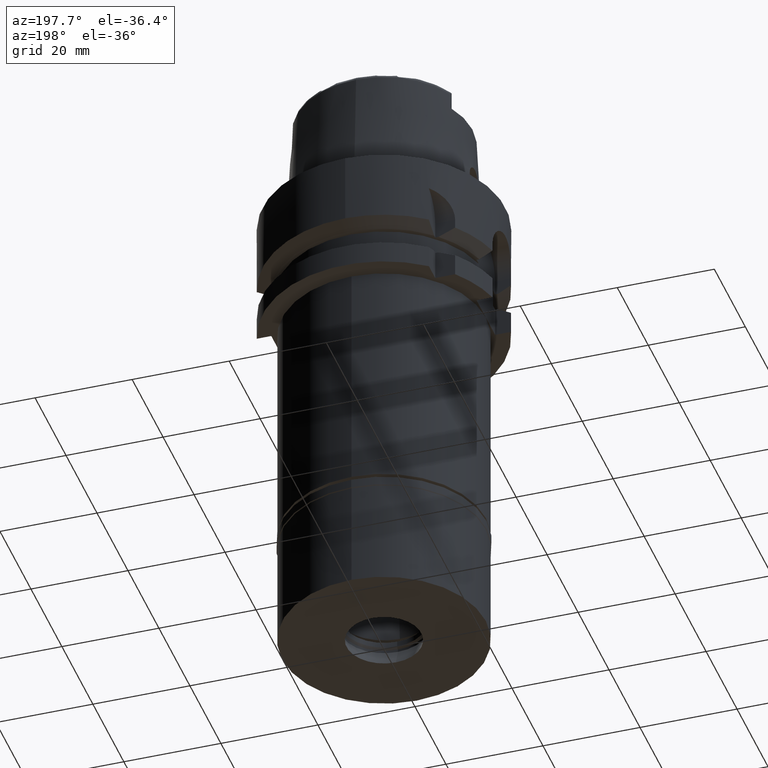
[diagram: clean part render]
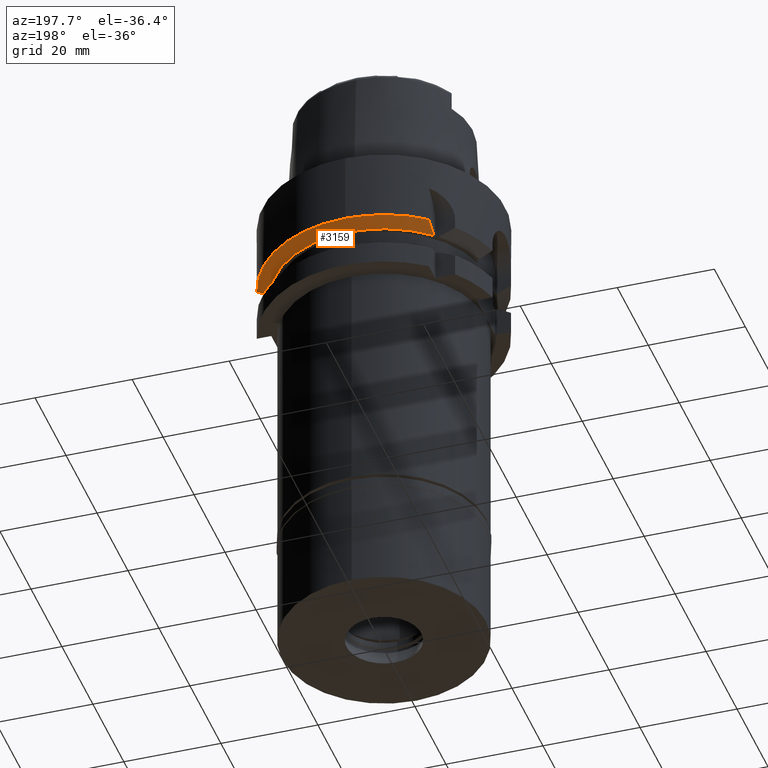
[diagram: same view with one face highlighted and labeled with its STEP entity id]
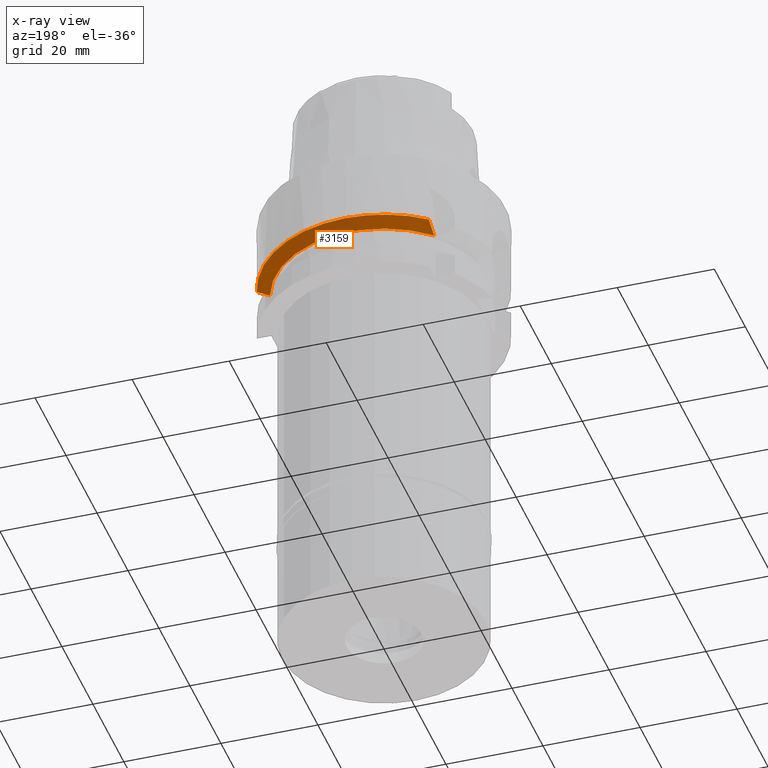
[diagram: x-ray of the same camera — body ghosted, the highlighted face saturated]
A machine part, auxiliary view. The second image highlights one B-rep face of the part: STEP entity #3159.
The next image is the same camera in x-ray: the body ghosted, the highlighted face saturated — about 0% of this face is hidden behind the body in this view.
In plain terms, the highlighted conical surface has half-angle 60 deg.
Its self-contained STEP definition (entity closure, byte-faithful):
#96 = VERTEX_POINT ( 'NONE', #3486 ) ;
#105 = EDGE_CURVE ( 'NONE', #1475, #3084, #764, .T. ) ;
#146 = CARTESIAN_POINT ( 'NONE',  ( 0.0000000000000000000, 25.00000000000000000, -14.62250092523999889 ) ) ;
#301 = DIRECTION ( 'NONE',  ( 0.9599999999999999645, 0.2800000000000000266, 0.0000000000000000000 ) ) ;
#417 = ORIENTED_EDGE ( 'NONE', *, *, #858, .F. ) ;
#457 = DIRECTION ( 'NONE',  ( 0.0000000000000000000, 0.0000000000000000000, 1.000000000000000000 ) ) ;
#550 = CARTESIAN_POINT ( 'NONE',  ( -15.50001397181000051, 19.61503420524999797, -14.62244977309000049 ) ) ;
#714 = DIRECTION ( 'NONE',  ( 0.0000000000000000000, 0.0000000000000000000, 1.000000000000000000 ) ) ;
#764 = CIRCLE ( 'NONE', #5355, 22.39759526418999869 ) ;
#788 = DIRECTION ( 'NONE',  ( 0.0000000000000000000, 0.0000000000000000000, 1.000000000000000000 ) ) ;
#858 = EDGE_CURVE ( 'NONE', #1855, #1966, #4204, .T. ) ;
#913 = ORIENTED_EDGE ( 'NONE', *, *, #2968, .F. ) ;
#967 = CARTESIAN_POINT ( 'NONE',  ( 21.27562137216000338, 7.000000355117999007, -16.12500000000000000 ) ) ;
#1079 = CARTESIAN_POINT ( 'NONE',  ( 0.0000000000000000000, 0.0000000000000000000, -14.62250092523999889 ) ) ;
#1127 = AXIS2_PLACEMENT_3D ( 'NONE', #3671, #788, #1978 ) ;
#1289 = FACE_OUTER_BOUND ( 'NONE', #2756, .T. ) ;
#1342 = ORIENTED_EDGE ( 'NONE', *, *, #105, .T. ) ;
#1475 = VERTEX_POINT ( 'NONE', #2160 ) ;
#1749 = CARTESIAN_POINT ( 'NONE',  ( -15.49997362910369603, 17.26571859756561267, -15.66749143312159021 ) ) ;
#1855 = VERTEX_POINT ( 'NONE', #146 ) ;
#1966 = VERTEX_POINT ( 'NONE', #3008 ) ;
#1978 = DIRECTION ( 'NONE',  ( 0.0000000000000000000, 1.000000000000000000, 0.0000000000000000000 ) ) ;
#2160 = CARTESIAN_POINT ( 'NONE',  ( 21.27562137216000338, 7.000000355117999007, -16.12500000000000000 ) ) ;
#2380 = CARTESIAN_POINT ( 'NONE',  ( 23.07028372070000088, 6.999999540189000058, -15.13727886184999960 ) ) ;
#2452 = CARTESIAN_POINT ( 'NONE',  ( 0.0000000000000000000, 0.0000000000000000000, -15.37375046262000033 ) ) ;
#2483 = CONICAL_SURFACE ( 'NONE', #3659, 23.69879763209999979, 1.047197551196400456 ) ;
#2634 = CARTESIAN_POINT ( 'NONE',  ( 21.56909304003000116, 7.000000355117999007, -15.96405165830999984 ) ) ;
#2756 = EDGE_LOOP ( 'NONE', ( #417, #3940, #913, #1342, #3224 ) ) ;
#2833 = EDGE_CURVE ( 'NONE', #3084, #1966, #4133, .T. ) ;
#2944 = DIRECTION ( 'NONE',  ( 0.0000000000000000000, 0.0000000000000000000, 1.000000000000000000 ) ) ;
#2958 = DIRECTION ( 'NONE',  ( 0.0000000000000000000, 1.000000000000000000, 0.0000000000000000000 ) ) ;
#2968 = EDGE_CURVE ( 'NONE', #1475, #96, #4733, .T. ) ;
#3008 = CARTESIAN_POINT ( 'NONE',  ( -15.50001397181000051, 19.61503420524999797, -14.62244977309000049 ) ) ;
#3032 = CARTESIAN_POINT ( 'NONE',  ( -15.50002786900227747, 18.41375079937796144, -15.16666509380010197 ) ) ;
#3084 = VERTEX_POINT ( 'NONE', #4491 ) ;
#3111 = EDGE_CURVE ( 'NONE', #96, #1855, #4453, .T. ) ;
#3159 = ADVANCED_FACE ( 'NONE', ( #1289 ), #2483, .T. ) ;
#3224 = ORIENTED_EDGE ( 'NONE', *, *, #2833, .T. ) ;
#3397 = CARTESIAN_POINT ( 'NONE',  ( 0.0000000000000000000, 0.0000000000000000000, -16.12500000000000000 ) ) ;
#3486 = CARTESIAN_POINT ( 'NONE',  ( 23.99999968302999775, 7.000001086771000303, -14.62249198540999906 ) ) ;
#3659 = AXIS2_PLACEMENT_3D ( 'NONE', #2452, #457, #2958 ) ;
#3671 = CARTESIAN_POINT ( 'NONE',  ( 0.0000000000000000000, 0.0000000000000000000, -14.62250092523999889 ) ) ;
#3940 = ORIENTED_EDGE ( 'NONE', *, *, #3111, .F. ) ;
#4058 = CARTESIAN_POINT ( 'NONE',  ( 23.99999968302999775, 7.000001086771000303, -14.62249198540999906 ) ) ;
#4133 = B_SPLINE_CURVE_WITH_KNOTS ( 'NONE', 3,
 ( #5215, #1749, #3032, #550 ),
 .UNSPECIFIED., .F., .F.,
 ( 4, 4 ),
 ( 0.0000000000000000000, 1.000000000000000000 ),
 .UNSPECIFIED. ) ;
#4204 = CIRCLE ( 'NONE', #1127, 25.00000000000000000 ) ;
#4280 = DIRECTION ( 'NONE',  ( 0.0000000000000000000, 1.000000000000000000, 0.0000000000000000000 ) ) ;
#4327 = CARTESIAN_POINT ( 'NONE',  ( 22.16217231071000171, 6.999999979181000143, -15.63814224490000093 ) ) ;
#4453 = CIRCLE ( 'NONE', #5243, 25.00000000000000000 ) ;
#4491 = CARTESIAN_POINT ( 'NONE',  ( -15.49998696695999989, 16.16805725644999825, -16.12500000000000000 ) ) ;
#4733 = B_SPLINE_CURVE_WITH_KNOTS ( 'NONE', 3,
 ( #967, #2634, #4327, #2380, #5373, #4058 ),
 .UNSPECIFIED., .F., .F.,
 ( 4, 1, 1, 4 ),
 ( 0.0000000000000000000, 0.3333333333333000081, 0.6666666666667000474, 1.000000000000000000 ),
 .UNSPECIFIED. ) ;
#5215 = CARTESIAN_POINT ( 'NONE',  ( -15.49998696695999989, 16.16805725644999825, -16.12500000000000000 ) ) ;
#5243 = AXIS2_PLACEMENT_3D ( 'NONE', #1079, #714, #301 ) ;
#5355 = AXIS2_PLACEMENT_3D ( 'NONE', #3397, #2944, #4280 ) ;
#5373 = CARTESIAN_POINT ( 'NONE',  ( 23.68802577017000033, 7.000001086771000303, -14.79540547222999969 ) ) ;